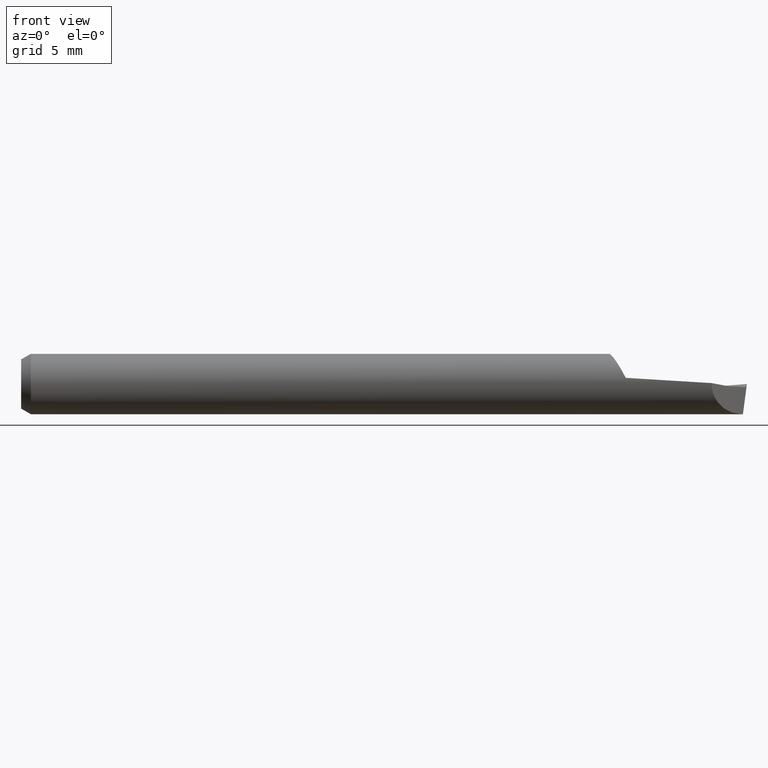
[diagram: clean part render]
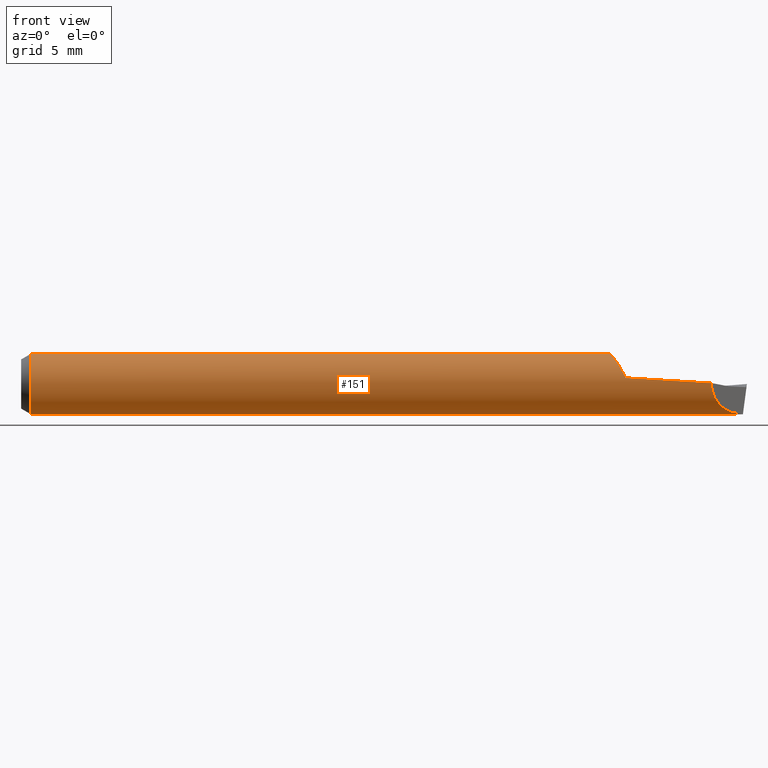
[diagram: same view with one face highlighted and labeled with its STEP entity id]
A machine part, front view. The second image highlights one B-rep face of the part: STEP entity #151.
In plain terms, the highlighted cylindrical surface (edge-blend (fillet) strip) has radius 1.585 mm, axis along (-1, -0, -0).
Its self-contained STEP definition (entity closure, byte-faithful):
#2 = CARTESIAN_POINT ( 'NONE',  ( 1.285000000000000142, 0.000000000000000000, -0.06239999999999999020 ) ) ;
#7 = CARTESIAN_POINT ( 'NONE',  ( 1.338643880694338151, -0.06220352800694264883, 0.007386643929259769856 ) ) ;
#8 = ORIENTED_EDGE ( 'NONE', *, *, #168, .T. ) ;
#11 = VERTEX_POINT ( 'NONE', #286 ) ;
#22 = AXIS2_PLACEMENT_3D ( 'NONE', #130, #179, #231 ) ;
#25 = CARTESIAN_POINT ( 'NONE',  ( 1.228938620844154173, -0.03954811019755048729, 0.04826782345320551615 ) ) ;
#27 = DIRECTION ( 'NONE',  ( 0.000000000000000000, 0.000000000000000000, 1.000000000000000000 ) ) ;
#30 = LINE ( 'NONE', #160, #389 ) ;
#33 = ORIENTED_EDGE ( 'NONE', *, *, #90, .T. ) ;
#37 =( BOUNDED_CURVE ( )  B_SPLINE_CURVE ( 3, ( #499, #136, #456, #398 ),
 .UNSPECIFIED., .F., .T. ) 
 B_SPLINE_CURVE_WITH_KNOTS ( ( 4, 4 ),
 ( 4.712388980384687898, 6.313711641188143986 ),
 .UNSPECIFIED. ) 
 CURVE ( )  GEOMETRIC_REPRESENTATION_ITEM ( )  RATIONAL_B_SPLINE_CURVE ( ( 1.000000000000000000, 0.7974880984232557424, 0.7974880984232557424, 1.000000000000000000 ) ) 
 REPRESENTATION_ITEM ( '' )  );
#61 = CARTESIAN_POINT ( 'NONE',  ( 0.02000000000000000042, 0.000000000000000000, 0.06239999999999999714 ) ) ;
#72 = ORIENTED_EDGE ( 'NONE', *, *, #323, .F. ) ;
#74 = CARTESIAN_POINT ( 'NONE',  ( 1.249835296245995098, -0.06108238399090171883, 0.01275548376142715545 ) ) ;
#78 = CARTESIAN_POINT ( 'NONE',  ( 1.231210198614224982, -0.04348049364634020558, 0.04498844483085986945 ) ) ;
#81 = CARTESIAN_POINT ( 'NONE',  ( 1.228601843419931727, -0.03895000380799452933, 0.04875114253357506339 ) ) ;
#82 = VERTEX_POINT ( 'NONE', #556 ) ;
#85 = ORIENTED_EDGE ( 'NONE', *, *, #218, .F. ) ;
#86 = CARTESIAN_POINT ( 'NONE',  ( 0.02000000000000000042, 7.641796026679484656E-18, -0.06239999999999999714 ) ) ;
#89 = VERTEX_POINT ( 'NONE', #74 ) ;
#90 = EDGE_CURVE ( 'NONE', #89, #11, #445, .T. ) ;
#125 = CARTESIAN_POINT ( 'NONE',  ( 1.199999999999999956, 0.000000000000000000, -0.06239999999999999020 ) ) ;
#127 = CIRCLE ( 'NONE', #22, 0.06239999999999999714 ) ;
#130 = CARTESIAN_POINT ( 'NONE',  ( 0.02000000000000000042, 0.000000000000000000, 0.000000000000000000 ) ) ;
#136 = CARTESIAN_POINT ( 'NONE',  ( 1.452155962588423943, -0.03744403741157589088, -0.06240000000000008040 ) ) ;
#139 = CARTESIAN_POINT ( 'NONE',  ( 1.249835296245995098, -0.06108238399090171883, 0.01275548376142715545 ) ) ;
#147 = ORIENTED_EDGE ( 'NONE', *, *, #487, .T. ) ;
#151 = ADVANCED_FACE ( 'NONE', ( #210 ), #384, .T. ) ;
#155 = VECTOR ( 'NONE', #233, 39.37007874015748143 ) ;
#159 = CARTESIAN_POINT ( 'NONE',  ( 1.249835296245995098, -0.06108238399090171883, 0.01275548376142715545 ) ) ;
#160 = CARTESIAN_POINT ( 'NONE',  ( 0.000000000000000000, 0.000000000000000000, 0.06239999999999999714 ) ) ;
#168 = EDGE_CURVE ( 'NONE', #180, #82, #216, .T. ) ;
#170 = CARTESIAN_POINT ( 'NONE',  ( 1.215416354742557825, -3.096158160012943776E-07, 0.06240138776565496564 ) ) ;
#179 = DIRECTION ( 'NONE',  ( -1.000000000000000000, -0.000000000000000000, -0.000000000000000000 ) ) ;
#180 = VERTEX_POINT ( 'NONE', #2 ) ;
#189 = CARTESIAN_POINT ( 'NONE',  ( 1.427229071682861727, -0.06237092831713793306, 0.001904547415644643844 ) ) ;
#206 = AXIS2_PLACEMENT_3D ( 'NONE', #480, #478, #27 ) ;
#210 = FACE_OUTER_BOUND ( 'NONE', #275, .T. ) ;
#216 = LINE ( 'NONE', #125, #155 ) ;
#218 = EDGE_CURVE ( 'NONE', #89, #385, #339, .T. ) ;
#231 = DIRECTION ( 'NONE',  ( 0.000000000000000000, 0.000000000000000000, 1.000000000000000000 ) ) ;
#233 = DIRECTION ( 'NONE',  ( 1.000000000000000000, -0.000000000000000000, -0.000000000000000000 ) ) ;
#236 = CARTESIAN_POINT ( 'NONE',  ( 1.427229071682861727, -0.06237092831713793306, 0.001904547415644643844 ) ) ;
#258 = EDGE_CURVE ( 'NONE', #312, #357, #127, .T. ) ;
#264 = VECTOR ( 'NONE', #367, 39.37007874015748143 ) ;
#275 = EDGE_LOOP ( 'NONE', ( #72, #8, #284, #85, #33, #147, #353 ) ) ;
#279 = EDGE_CURVE ( 'NONE', #82, #385, #37, .T. ) ;
#284 = ORIENTED_EDGE ( 'NONE', *, *, #279, .T. ) ;
#286 = CARTESIAN_POINT ( 'NONE',  ( 1.215416354742557825, -3.096158160012943776E-07, 0.06240138776565496564 ) ) ;
#298 = CARTESIAN_POINT ( 'NONE',  ( 1.221587132636402728, -0.02369398746549044796, 0.05784362774931333523 ) ) ;
#312 = VERTEX_POINT ( 'NONE', #86 ) ;
#323 = EDGE_CURVE ( 'NONE', #180, #312, #551, .T. ) ;
#339 =( BOUNDED_CURVE ( )  B_SPLINE_CURVE ( 2, ( #139, #7, #189 ),
 .UNSPECIFIED., .F., .F. ) 
 B_SPLINE_CURVE_WITH_KNOTS ( ( 3, 3 ),
 ( 0.6451632367925622669, 0.8958541847013351545 ),
 .UNSPECIFIED. ) 
 CURVE ( )  GEOMETRIC_REPRESENTATION_ITEM ( )  RATIONAL_B_SPLINE_CURVE ( ( 0.9803429797851890282, 0.9771918254678608751, 0.9815758700507004608 ) ) 
 REPRESENTATION_ITEM ( '' )  );
#345 = CARTESIAN_POINT ( 'NONE',  ( 1.216396980198236388, -0.006366907595454449412, 0.06239997961777467989 ) ) ;
#349 = CARTESIAN_POINT ( 'NONE',  ( 1.240848254320486399, -0.05547916175596864785, 0.02939914910442548851 ) ) ;
#353 = ORIENTED_EDGE ( 'NONE', *, *, #258, .F. ) ;
#357 = VERTEX_POINT ( 'NONE', #61 ) ;
#367 = DIRECTION ( 'NONE',  ( -1.000000000000000000, -0.000000000000000000, -0.000000000000000000 ) ) ;
#384 = CYLINDRICAL_SURFACE ( 'NONE', #206, 0.06239999999999999714 ) ;
#385 = VERTEX_POINT ( 'NONE', #236 ) ;
#387 = CARTESIAN_POINT ( 'NONE',  ( 1.218061978292365843, -0.01325395992816112527, 0.06141835067051629876 ) ) ;
#389 = VECTOR ( 'NONE', #521, 39.37007874015748143 ) ;
#392 = CARTESIAN_POINT ( 'NONE',  ( 1.245013758512700131, -0.05916887957875072157, 0.02192302009893481660 ) ) ;
#396 = CARTESIAN_POINT ( 'NONE',  ( 1.229062183228580629, -0.03976434486288435433, 0.04808989442668241271 ) ) ;
#398 = CARTESIAN_POINT ( 'NONE',  ( 1.427229071682861727, -0.06237092831713793306, 0.001904547415644643844 ) ) ;
#417 = CARTESIAN_POINT ( 'NONE',  ( 0.000000000000000000, 7.641796026679484656E-18, -0.06239999999999999714 ) ) ;
#431 = CARTESIAN_POINT ( 'NONE',  ( 1.226412297520227401, -0.03485729311681249470, 0.05182606305332643215 ) ) ;
#445 = B_SPLINE_CURVE_WITH_KNOTS ( 'NONE', 3,
 ( #159, #392, #349, #484, #78, #396, #25, #562, #567, #81, #559, #569, #431, #522, #528, #298, #387, #345, #170 ),
 .UNSPECIFIED., .F., .F.,
 ( 4, 2, 2, 2, 2, 1, 1, 1, 2, 2, 4 ),
 ( 0.000000000000000000, 0.2421868667587710744, 0.4843737335175421488, 0.4995104126899635455, 0.5032945824830675763, 0.5070787522761716071, 0.5146470918623782254, 0.5449204502072071410, 0.6054671668968648612, 0.7265606002761813009, 0.9687474670348142913 ),
 .UNSPECIFIED. ) ;
#456 = CARTESIAN_POINT ( 'NONE',  ( 1.426086220005241323, -0.06351377999475842084, -0.03552204510521496383 ) ) ;
#478 = DIRECTION ( 'NONE',  ( -1.000000000000000000, -0.000000000000000000, -0.000000000000000000 ) ) ;
#480 = CARTESIAN_POINT ( 'NONE',  ( 0.000000000000000000, 0.000000000000000000, 0.000000000000000000 ) ) ;
#484 = CARTESIAN_POINT ( 'NONE',  ( 1.233946474371248936, -0.04763377131145410392, 0.04090563760482492095 ) ) ;
#487 = EDGE_CURVE ( 'NONE', #11, #357, #30, .T. ) ;
#499 = CARTESIAN_POINT ( 'NONE',  ( 1.489600000000000035, 0.000000000000000000, -0.06239999999999999020 ) ) ;
#521 = DIRECTION ( 'NONE',  ( -1.000000000000000000, -0.000000000000000000, -0.000000000000000000 ) ) ;
#522 = CARTESIAN_POINT ( 'NONE',  ( 1.225209866058329267, -0.03231902831935336978, 0.05341435669382066376 ) ) ;
#528 = CARTESIAN_POINT ( 'NONE',  ( 1.222933460284889140, -0.02718736288394425424, 0.05630292771698657689 ) ) ;
#551 = LINE ( 'NONE', #417, #264 ) ;
#556 = CARTESIAN_POINT ( 'NONE',  ( 1.489600000000000035, 0.000000000000000000, -0.06239999999999999020 ) ) ;
#559 = CARTESIAN_POINT ( 'NONE',  ( 1.228432973414682605, -0.03864719468563467680, 0.04899255897457841652 ) ) ;
#562 = CARTESIAN_POINT ( 'NONE',  ( 1.228787657190854921, -0.03928094514397559300, 0.04848476138092456394 ) ) ;
#567 = CARTESIAN_POINT ( 'NONE',  ( 1.228714757947260372, -0.03915156276872309993, 0.04858942094467142564 ) ) ;
#569 = CARTESIAN_POINT ( 'NONE',  ( 1.227819303038613086, -0.03753182644841837612, 0.04986493578756435313 ) ) ;